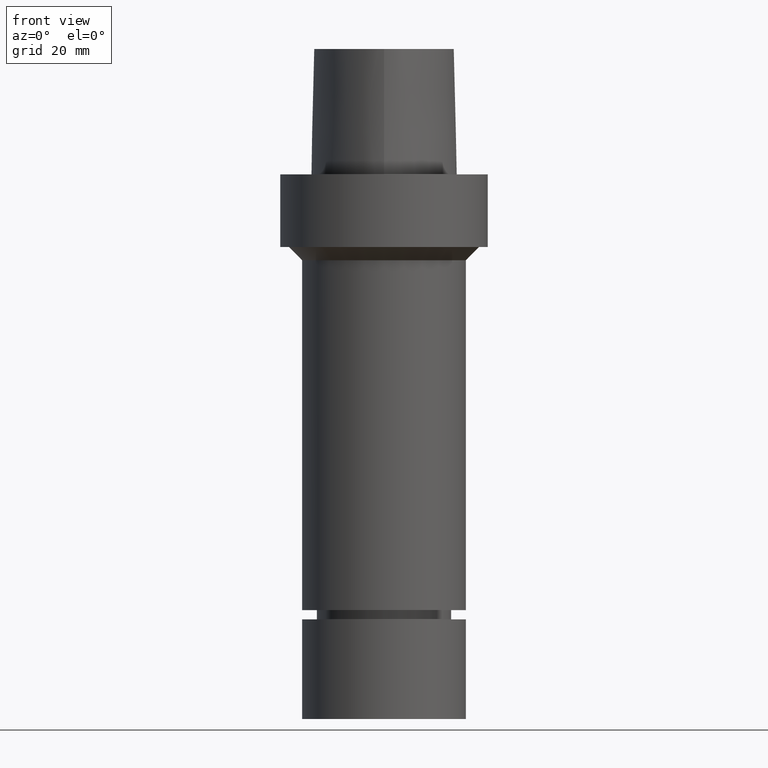
[diagram: clean part render]
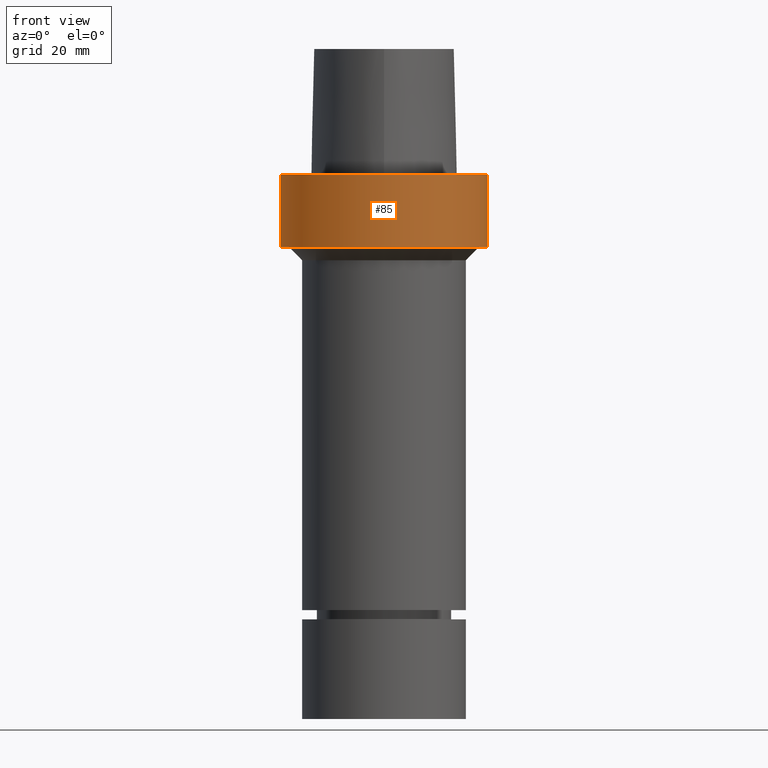
[diagram: same view with one face highlighted and labeled with its STEP entity id]
A machine part, front view. The second image highlights one B-rep face of the part: STEP entity #85.
In plain terms, the highlighted cylindrical surface (bore or boss wall) has radius 31.5 mm, axis along (0, 0, -1).
Its self-contained STEP definition (entity closure, byte-faithful):
#85=ADVANCED_FACE('Unnamed[1]',(#209,#210),#211,.T.);
#116=EDGE_CURVE('Unnamed[1]',#257,#257,#258,.T.);
#129=EDGE_CURVE('Unnamed[1]',#276,#276,#277,.T.);
#209=FACE_BOUND('',#386,.T.);
#210=FACE_BOUND('',#387,.T.);
#211=CYLINDRICAL_SURFACE('',#388,31.5);
#257=VERTEX_POINT('',#532);
#258=CIRCLE('',#533,31.5);
#276=VERTEX_POINT('',#555);
#277=CIRCLE('',#556,31.5);
#386=EDGE_LOOP('',(#752));
#387=EDGE_LOOP('',(#753));
#388=AXIS2_PLACEMENT_3D('',#754,#755,#756);
#532=CARTESIAN_POINT('',(-3.88267476788467E-031,31.5,3.85763741731416E-015));
#533=AXIS2_PLACEMENT_3D('',#801,#802,#803);
#555=CARTESIAN_POINT('',(1.34711147906212E-015,31.5,-22.0000000000006));
#556=AXIS2_PLACEMENT_3D('',#822,#823,#824);
#752=ORIENTED_EDGE('',*,*,#129,.F.);
#753=ORIENTED_EDGE('',*,*,#116,.T.);
#754=CARTESIAN_POINT('',(6.73555739531062E-016,1.34711147906212E-015,-11.0000000000003));
#755=DIRECTION('',(6.12323399573677E-017,1.22464679914735E-016,-1.0));
#756=DIRECTION('',(-1.23259516440783E-032,1.0,1.22464679914735E-016));
#801=CARTESIAN_POINT('',(0.0,0.0,0.0));
#802=DIRECTION('',(6.12323399573677E-017,1.22464679914735E-016,-1.0));
#803=DIRECTION('',(-1.23259516440783E-032,1.0,1.22464679914735E-016));
#822=CARTESIAN_POINT('',(1.34711147906212E-015,2.69422295812425E-015,-22.0000000000006));
#823=DIRECTION('',(6.12323399573677E-017,1.22464679914735E-016,-1.0));
#824=DIRECTION('',(-1.23259516440783E-032,1.0,1.22464679914735E-016));